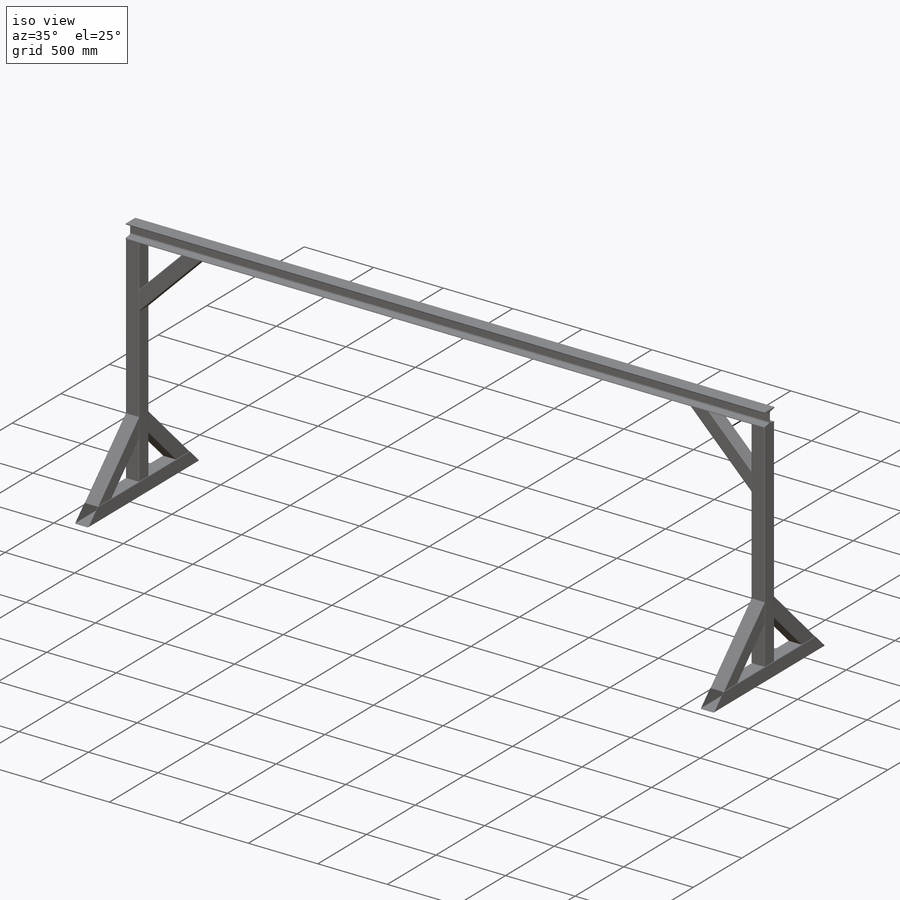
[diagram: iso view]
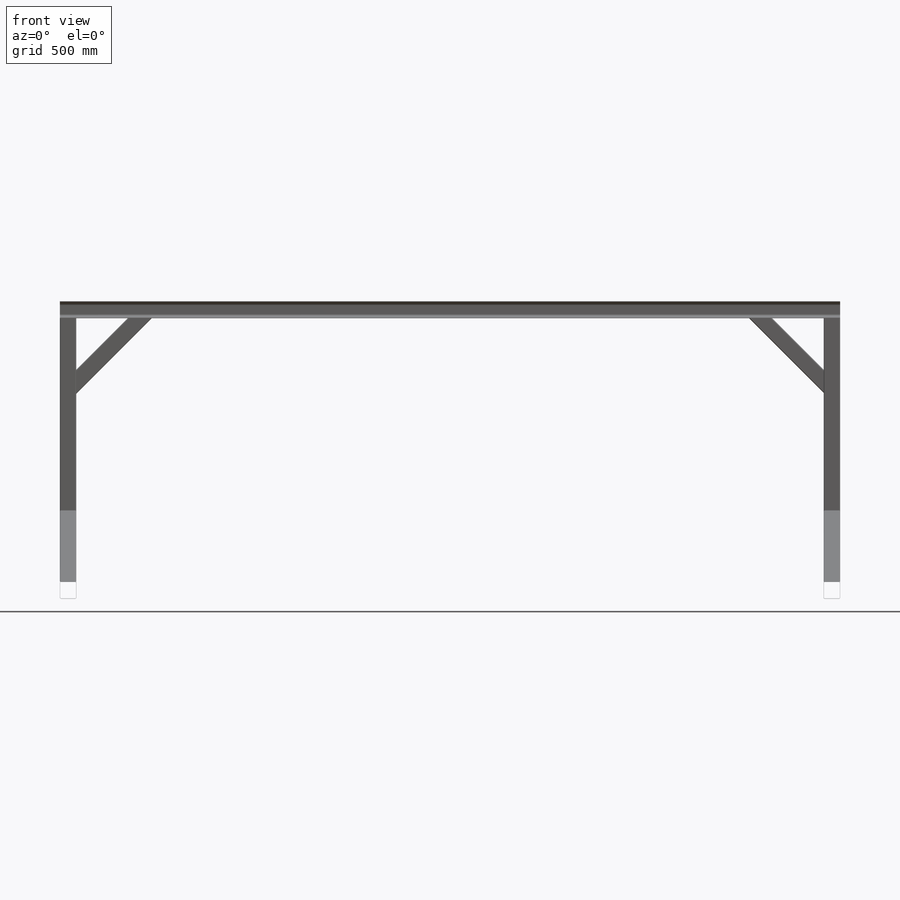
[diagram: front view]
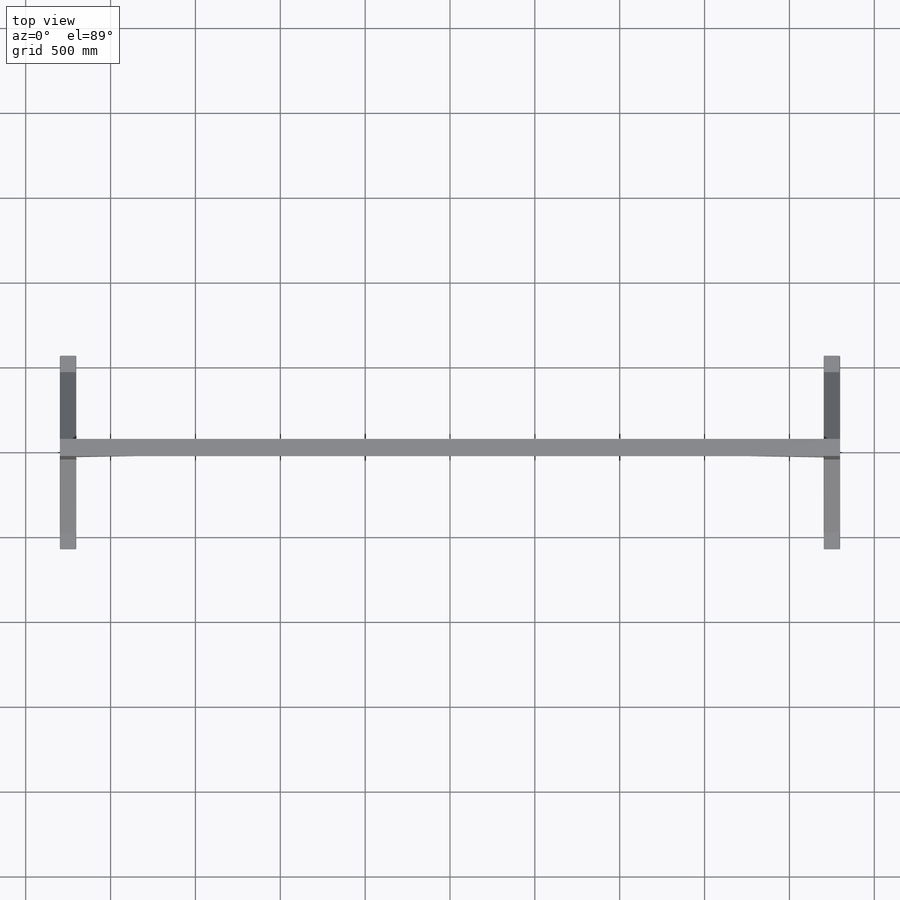
[diagram: top view]
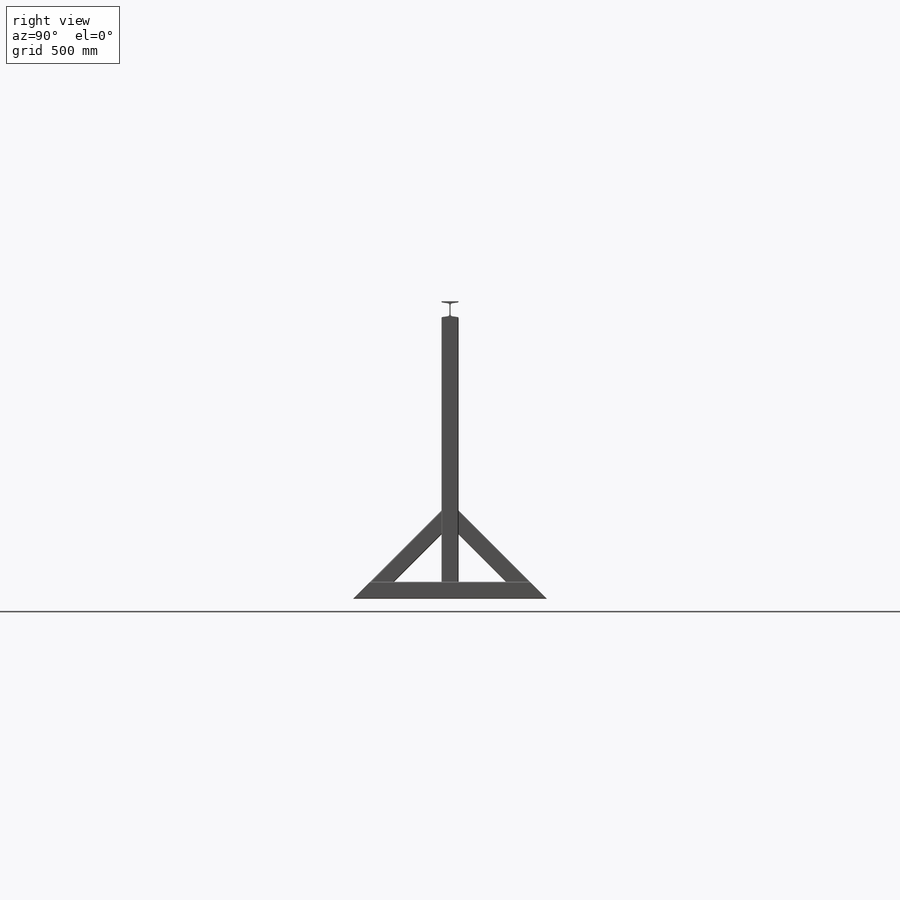
[diagram: right view]
SOLIDWORKS PART (.sldprt)
format: sldprt  version: not decoded by parser v0  size: 631,808 bytes
history: native  units: mm
features: sketch x5, material x1, extrude x1, plane x1, cut_extrude x1 (+11 scaffold rows collapsed)
feature tree (20):
  scaffold x11  (default folders/planes/origin — collapsed)
  material  "Material <not specified>"
  sketch  "3DSketch1"  dims[c1.D1=~181.188736mm c2.D1=~45.058193mm c3.D1=4597.4mm c3.D2=~962.280419mm c4.D2=~1191.066155mm c5.D2=~892.163148mm c6.D2=~1342.252671mm c7.D2=1752.6mm c7.D3=~2905.430525mm c8.D3=~1048.885684mm c9.D3=~1368.860512mm c10.D3=~5327.729868mm c11.D3=~2929.330646mm c12.D3=~356.434333mm c13.D3=~1446.916441mm c14.D3=1000.0mm c14.D4=~769.423918mm c15.D4=~769.423918mm c16.D4=~699.831129mm c17.D4=~699.831129mm c18.D4=~769.423918mm c19.D4=45.0deg c19.D5=~699.831129mm c20.D5=~135.598804deg c20.D6=~135.598804deg c21.D5=1000.0mm c22.D5=45.0deg c22.D6=~572.520071mm c23.D6=~825.776309mm c24.D6=~583.403049mm c25.D6=~661.24104mm c26.D6=~572.520071mm c27.D6=45.0deg c27.D7=~583.403049mm c28.D7=45.0deg]
  sketch  "Sketch1"  dims[c1.CurrentVersion=0.0mm c1.EditFunction=0.0mm c1.Type=0.0mm c1.SubType=0.0mm c1.Application=0.0mm c2.CurrentVersion=0.0mm c2.EditFunction=0.0mm c2.Type=0.0mm c2.SubType=0.0mm c2.D5=6.35mm c2.D7=2.54mm c2.D8=2.54mm c2.D10=2.54mm c2.D11=2.54mm c2.RA=2.54mm c3.D5=6.0mm c3.D10=10.0mm c3.D1=100.0mm c3.D2=6.35mm c3.D3=44.45mm c3.D4=12.7mm c3.D6=90.0deg c4.D2=97.0deg c4.D7=90.0deg c4.D8=6.35mm c4.D9=90.0deg c4.D10=19.05mm c5.D2=90.0deg c5.D6=99.0deg c5.D7=19.05mm c5.D9=99.0deg c5.D12=5.08mm c5.D8=19.05mm c6.D6=90.0deg c6.D2=100.0mm c6.D3=6.0mm c7.D6=90.0deg c7.D7=90.0deg c7.D8=~52.531699mm c8.D6=~19.183835mm c9.D6=9.463deg c9.D7=~13.491778mm c10.D7=9.463deg c10.D2=~6.364353mm c10.D10=22.098mm c10.D6=184.023mm c11.D6=9.463deg c12.D6=~62.307608mm c13.D6=170.537deg c14.D6=184.023mm c15.D6=170.537deg c16.D6=184.023mm c17.D6=170.537deg c18.D6=~6.747162mm c19.D6=98.0deg c19.D7=~6.747162mm c20.D7=260.537deg c21.D7=~6.747162mm c22.D7=98.0deg]
  extrude  "Boss-Extrude1"  [1 undecoded]
  plane  "Plane1"
  sketch  "Sketch16"  dims[c1.D4=4.4mm c1.D5=6.0mm c1.D1=~98.474395mm c1.D2=~96.543525mm c2.D1=100.0mm c2.D2=~96.543525mm c2.D3=~51.722275mm c2.D4=~55.118102mm c3.D3=1.6mm]
  sketch  "Sketch12"  dims[D1=~385.160519mm D2=~3459.687465mm]
  cut_extrude  "Cut-Extrude1"  [1 undecoded]
  sketch  "Sketch14"  dims[c1.D1=~189.463038mm c1.D2=~179.072129mm c2.D1=150.0mm]
decode coverage: 5 of 7 modeling features carry decoded parameters
note: ~ marks probable driven/reference dimensions
note: 2 parameter values undecoded
note: suppression state not decoded; provenance and decode notes live in map.json
